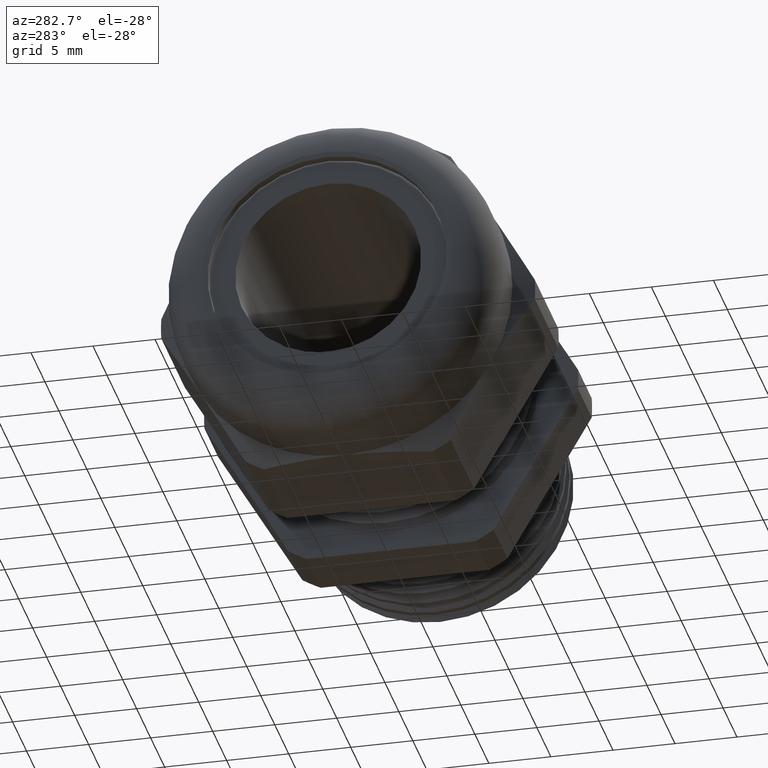
[diagram: clean part render]
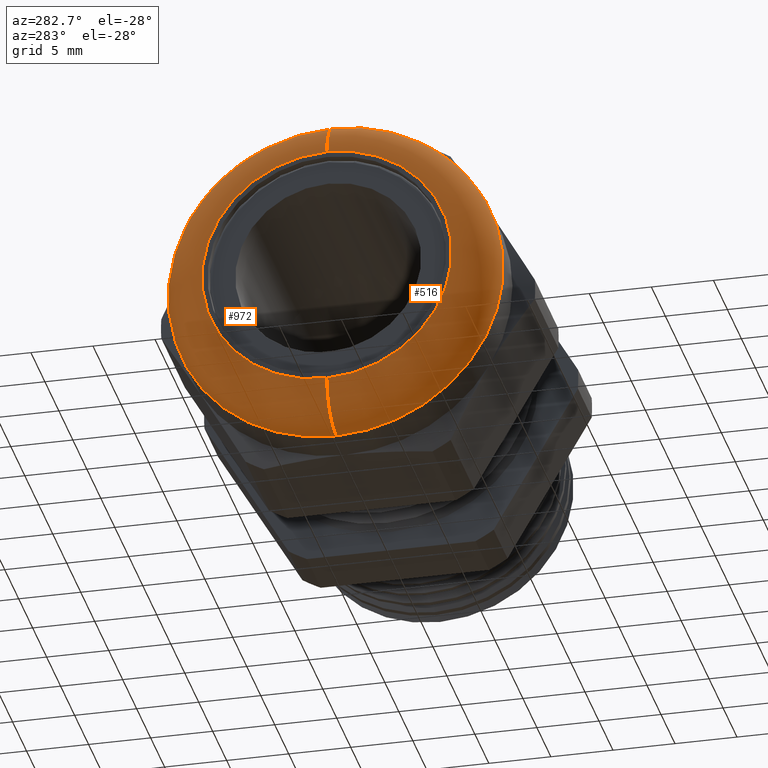
[diagram: same view with one multi-face feature highlighted, each face labeled with its STEP entity id]
A machine part, auxiliary view. The highlighted faces form ONE feature: a constant-radius fillet chain: 2 tangent blend faces with common blend radius 3.3934 mm. The faces share edges in the B-rep.
Their STEP definitions:
[1] entity #972 (Torus):
#970 = VERTEX_POINT ( 'NONE', #2767 ) ;
#972 = ADVANCED_FACE ( 'NONE', ( #2762 ), #2760, .T. ) ;
#980 = EDGE_CURVE ( 'NONE', #981, #1034, #2804, .T. ) ;
#981 = VERTEX_POINT ( 'NONE', #2799 ) ;
#983 = ORIENTED_EDGE ( 'NONE', *, *, #1016, .T. ) ;
#1013 = EDGE_LOOP ( 'NONE', ( #1014, #983, #1035, #1017 ) ) ;
#1014 = ORIENTED_EDGE ( 'NONE', *, *, #1015, .F. ) ;
#1015 = EDGE_CURVE ( 'NONE', #1039, #970, #2867, .T. ) ;
#1016 = EDGE_CURVE ( 'NONE', #1039, #1034, #2862, .T. ) ;
#1017 = ORIENTED_EDGE ( 'NONE', *, *, #1018, .F. ) ;
#1018 = EDGE_CURVE ( 'NONE', #970, #981, #2857, .T. ) ;
#1034 = VERTEX_POINT ( 'NONE', #2910 ) ;
#1035 = ORIENTED_EDGE ( 'NONE', *, *, #980, .F. ) ;
#1039 = VERTEX_POINT ( 'NONE', #2908 ) ;
#2757 = DIRECTION ( 'NONE',  ( 0.0000000000000000000, 0.0000000000000000000, -1.000000000000000000 ) ) ;
#2758 = DIRECTION ( 'NONE',  ( 1.000000000000000000, 0.0000000000000000000, 0.0000000000000000000 ) ) ;
#2759 = AXIS2_PLACEMENT_3D ( 'NONE', #2761, #2758, #2757 ) ;
#2760 = TOROIDAL_SURFACE ( 'NONE', #2759, 0.3963999999999998100, 0.1336000000000001400 ) ;
#2761 = CARTESIAN_POINT ( 'NONE',  ( -0.9663999999999999300, 0.0000000000000000000, 0.0000000000000000000 ) ) ;
#2762 = FACE_OUTER_BOUND ( 'NONE', #1013, .T. ) ;
#2767 = CARTESIAN_POINT ( 'NONE',  ( -1.100000000000000100, 0.0000000000000000000, -0.3963999999999998100 ) ) ;
#2799 = CARTESIAN_POINT ( 'NONE',  ( -0.9663999999999999300, 6.490628035480971200E-017, -0.5299999999999999200 ) ) ;
#2800 = DIRECTION ( 'NONE',  ( 0.0000000000000000000, 0.0000000000000000000, -1.000000000000000000 ) ) ;
#2801 = DIRECTION ( 'NONE',  ( 1.000000000000000000, 0.0000000000000000000, 0.0000000000000000000 ) ) ;
#2802 = CARTESIAN_POINT ( 'NONE',  ( -0.9663999999999999300, 0.0000000000000000000, 0.0000000000000000000 ) ) ;
#2803 = AXIS2_PLACEMENT_3D ( 'NONE', #2802, #2801, #2800 ) ;
#2804 = CIRCLE ( 'NONE', #2803, 0.5299999999999999200 ) ;
#2853 = DIRECTION ( 'NONE',  ( 0.0000000000000000000, 0.0000000000000000000, -1.000000000000000000 ) ) ;
#2854 = DIRECTION ( 'NONE',  ( 0.0000000000000000000, -1.000000000000000000, 0.0000000000000000000 ) ) ;
#2855 = CARTESIAN_POINT ( 'NONE',  ( -0.9663999999999999300, 0.0000000000000000000, -0.3963999999999998100 ) ) ;
#2856 = AXIS2_PLACEMENT_3D ( 'NONE', #2855, #2854, #2853 ) ;
#2857 = CIRCLE ( 'NONE', #2856, 0.1336000000000001100 ) ;
#2858 = DIRECTION ( 'NONE',  ( 0.0000000000000000000, 1.224646799147353700E-016, 1.000000000000000000 ) ) ;
#2859 = DIRECTION ( 'NONE',  ( 0.0000000000000000000, 1.000000000000000000, -1.224646799147353200E-016 ) ) ;
#2860 = CARTESIAN_POINT ( 'NONE',  ( -0.9663999999999999300, 4.854499911820106400E-017, 0.3963999999999998100 ) ) ;
#2861 = AXIS2_PLACEMENT_3D ( 'NONE', #2860, #2859, #2858 ) ;
#2862 = CIRCLE ( 'NONE', #2861, 0.1336000000000001100 ) ;
#2863 = DIRECTION ( 'NONE',  ( 0.0000000000000000000, 0.0000000000000000000, -1.000000000000000000 ) ) ;
#2864 = DIRECTION ( 'NONE',  ( -1.000000000000000000, 0.0000000000000000000, 0.0000000000000000000 ) ) ;
#2865 = CARTESIAN_POINT ( 'NONE',  ( -1.100000000000000100, 0.0000000000000000000, 0.0000000000000000000 ) ) ;
#2866 = AXIS2_PLACEMENT_3D ( 'NONE', #2865, #2864, #2863 ) ;
#2867 = CIRCLE ( 'NONE', #2866, 0.3963999999999998100 ) ;
#2908 = CARTESIAN_POINT ( 'NONE',  ( -1.100000000000000100, 5.672563973650537800E-017, 0.3963999999999998100 ) ) ;
#2910 = CARTESIAN_POINT ( 'NONE',  ( -0.9663999999999999300, 0.0000000000000000000, 0.5299999999999999200 ) ) ;
[2] entity #516 (Torus):
#368 = EDGE_CURVE ( 'NONE', #970, #1039, #1758, .T. ) ;
#420 = EDGE_CURVE ( 'NONE', #1034, #981, #1823, .T. ) ;
#516 = ADVANCED_FACE ( 'NONE', ( #1967 ), #1966, .T. ) ;
#517 = EDGE_LOOP ( 'NONE', ( #518, #519, #520, #521 ) ) ;
#518 = ORIENTED_EDGE ( 'NONE', *, *, #1016, .F. ) ;
#519 = ORIENTED_EDGE ( 'NONE', *, *, #368, .F. ) ;
#520 = ORIENTED_EDGE ( 'NONE', *, *, #1018, .T. ) ;
#521 = ORIENTED_EDGE ( 'NONE', *, *, #420, .F. ) ;
#970 = VERTEX_POINT ( 'NONE', #2767 ) ;
#981 = VERTEX_POINT ( 'NONE', #2799 ) ;
#1016 = EDGE_CURVE ( 'NONE', #1039, #1034, #2862, .T. ) ;
#1018 = EDGE_CURVE ( 'NONE', #970, #981, #2857, .T. ) ;
#1034 = VERTEX_POINT ( 'NONE', #2910 ) ;
#1039 = VERTEX_POINT ( 'NONE', #2908 ) ;
#1574 = DIRECTION ( 'NONE',  ( 0.0000000000000000000, 0.0000000000000000000, -1.000000000000000000 ) ) ;
#1575 = AXIS2_PLACEMENT_3D ( 'NONE', #1578, #1577, #1574 ) ;
#1577 = DIRECTION ( 'NONE',  ( 1.000000000000000000, 0.0000000000000000000, 0.0000000000000000000 ) ) ;
#1578 = CARTESIAN_POINT ( 'NONE',  ( -0.9663999999999999300, 0.0000000000000000000, 0.0000000000000000000 ) ) ;
#1758 = CIRCLE ( 'NONE', #1822, 0.3963999999999998100 ) ;
#1819 = DIRECTION ( 'NONE',  ( 0.0000000000000000000, 0.0000000000000000000, -1.000000000000000000 ) ) ;
#1820 = DIRECTION ( 'NONE',  ( -1.000000000000000000, 0.0000000000000000000, 0.0000000000000000000 ) ) ;
#1821 = CARTESIAN_POINT ( 'NONE',  ( -1.100000000000000100, 0.0000000000000000000, 0.0000000000000000000 ) ) ;
#1822 = AXIS2_PLACEMENT_3D ( 'NONE', #1821, #1820, #1819 ) ;
#1823 = CIRCLE ( 'NONE', #1575, 0.5299999999999999200 ) ;
#1963 = DIRECTION ( 'NONE',  ( 0.0000000000000000000, 0.0000000000000000000, -1.000000000000000000 ) ) ;
#1964 = DIRECTION ( 'NONE',  ( 1.000000000000000000, 0.0000000000000000000, 0.0000000000000000000 ) ) ;
#1965 = AXIS2_PLACEMENT_3D ( 'NONE', #1971, #1964, #1963 ) ;
#1966 = TOROIDAL_SURFACE ( 'NONE', #1965, 0.3963999999999998100, 0.1336000000000001400 ) ;
#1967 = FACE_OUTER_BOUND ( 'NONE', #517, .T. ) ;
#1971 = CARTESIAN_POINT ( 'NONE',  ( -0.9663999999999999300, 0.0000000000000000000, 0.0000000000000000000 ) ) ;
#2767 = CARTESIAN_POINT ( 'NONE',  ( -1.100000000000000100, 0.0000000000000000000, -0.3963999999999998100 ) ) ;
#2799 = CARTESIAN_POINT ( 'NONE',  ( -0.9663999999999999300, 6.490628035480971200E-017, -0.5299999999999999200 ) ) ;
#2853 = DIRECTION ( 'NONE',  ( 0.0000000000000000000, 0.0000000000000000000, -1.000000000000000000 ) ) ;
#2854 = DIRECTION ( 'NONE',  ( 0.0000000000000000000, -1.000000000000000000, 0.0000000000000000000 ) ) ;
#2855 = CARTESIAN_POINT ( 'NONE',  ( -0.9663999999999999300, 0.0000000000000000000, -0.3963999999999998100 ) ) ;
#2856 = AXIS2_PLACEMENT_3D ( 'NONE', #2855, #2854, #2853 ) ;
#2857 = CIRCLE ( 'NONE', #2856, 0.1336000000000001100 ) ;
#2858 = DIRECTION ( 'NONE',  ( 0.0000000000000000000, 1.224646799147353700E-016, 1.000000000000000000 ) ) ;
#2859 = DIRECTION ( 'NONE',  ( 0.0000000000000000000, 1.000000000000000000, -1.224646799147353200E-016 ) ) ;
#2860 = CARTESIAN_POINT ( 'NONE',  ( -0.9663999999999999300, 4.854499911820106400E-017, 0.3963999999999998100 ) ) ;
#2861 = AXIS2_PLACEMENT_3D ( 'NONE', #2860, #2859, #2858 ) ;
#2862 = CIRCLE ( 'NONE', #2861, 0.1336000000000001100 ) ;
#2908 = CARTESIAN_POINT ( 'NONE',  ( -1.100000000000000100, 5.672563973650537800E-017, 0.3963999999999998100 ) ) ;
#2910 = CARTESIAN_POINT ( 'NONE',  ( -0.9663999999999999300, 0.0000000000000000000, 0.5299999999999999200 ) ) ;